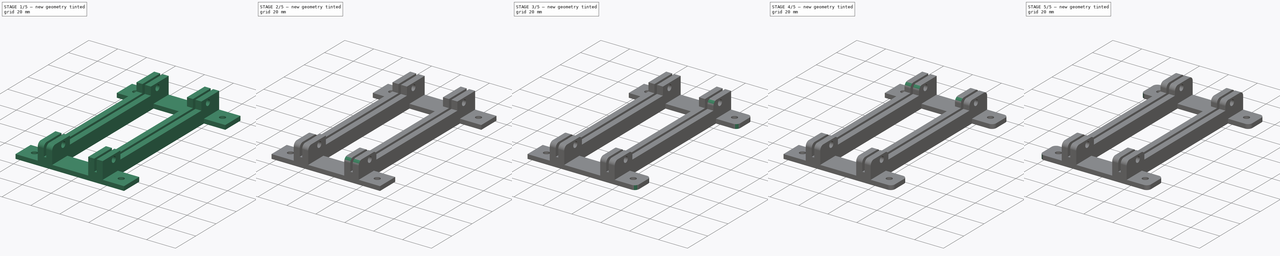
[diagram: build sequence overview — one tinted view per stage of 5, left to right]
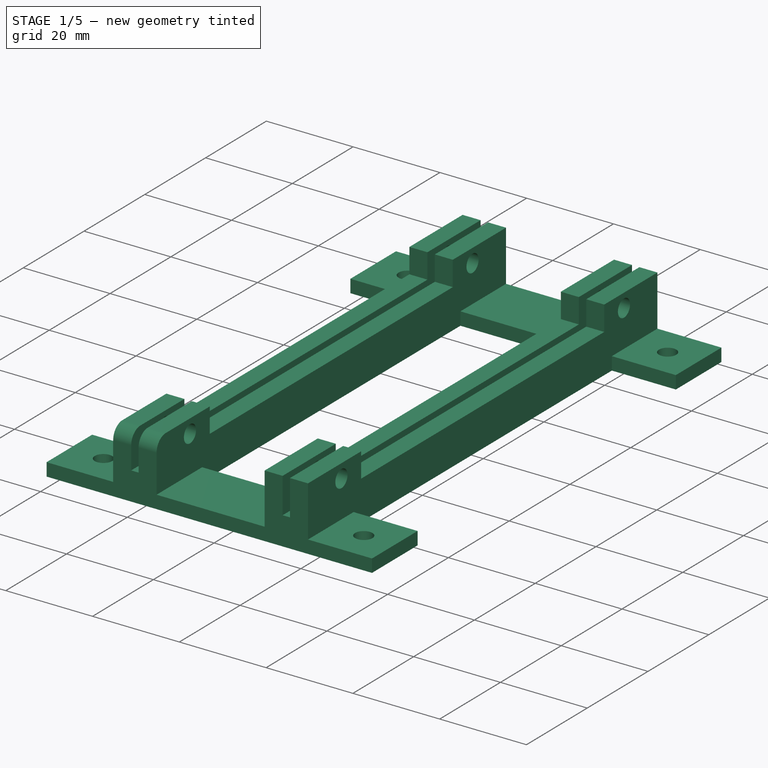
[diagram: stage 1 of 5 — iso view after this stage's code; geometry added in this stage tinted green]
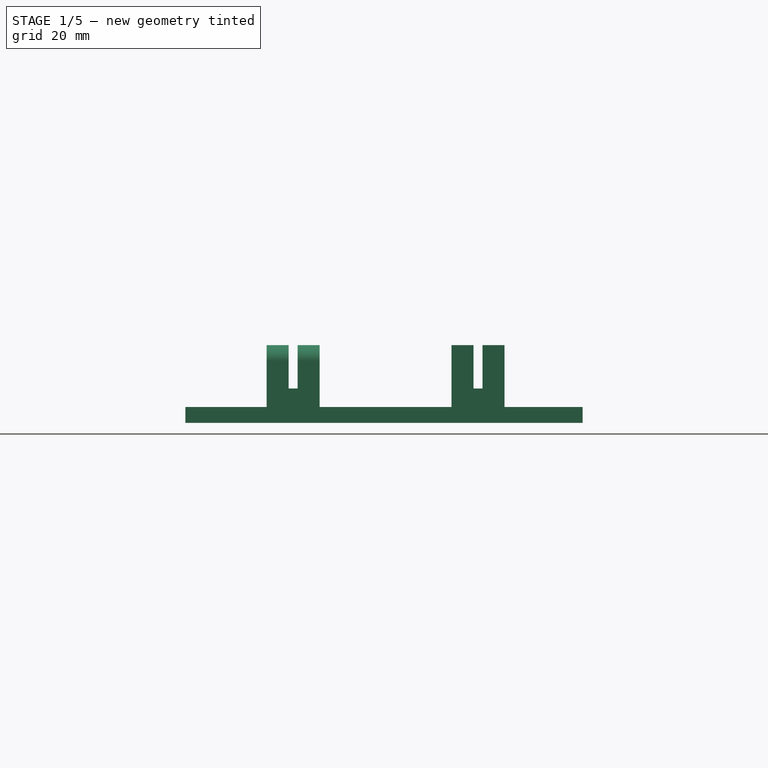
[diagram: stage 1 of 5 — front view after this stage's code; geometry added in this stage tinted green]
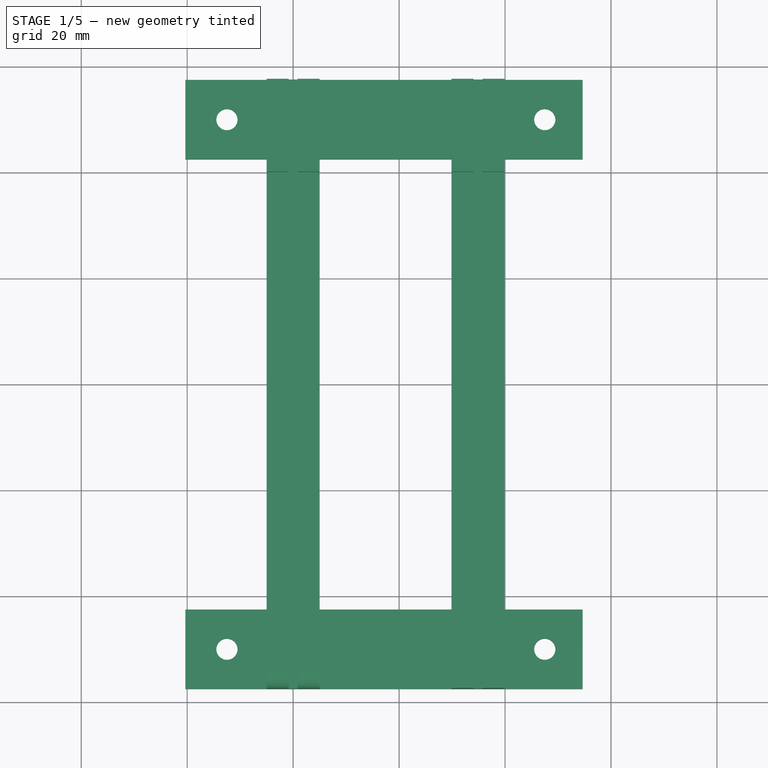
[diagram: stage 1 of 5 — top view after this stage's code; geometry added in this stage tinted green]
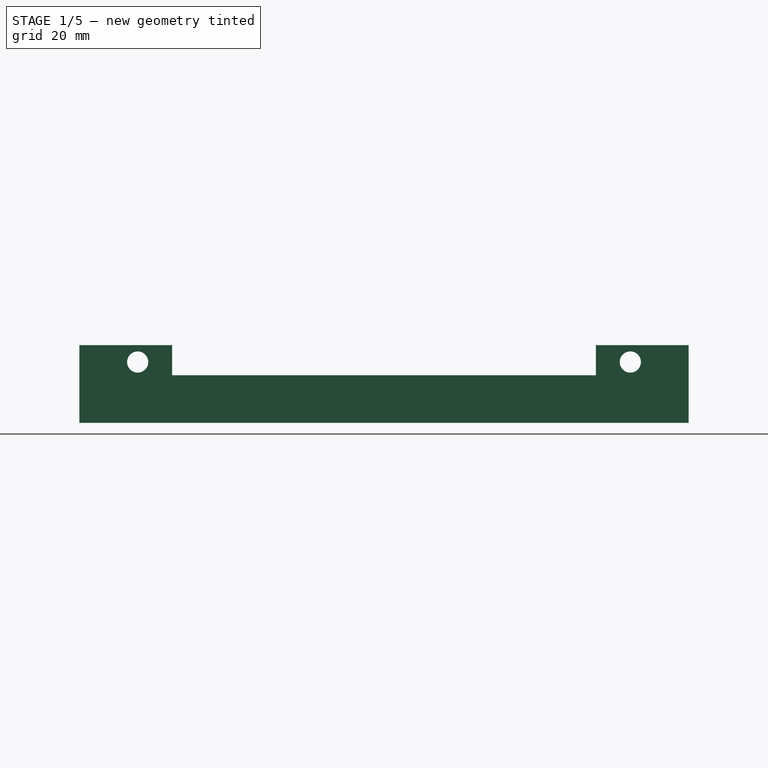
[diagram: stage 1 of 5 — right view after this stage's code; geometry added in this stage tinted green]
FCSTD DOCUMENT  (FreeCAD 1.0R39319 (Git))
Label: Mounting_Bracket_Dual_KF5N
License: All rights reserved
LicenseURL: http://en.wikipedia.org/wiki/All_rights_reserved
objects: PartDesign::Fillet×24, Sketcher::SketchObject×4, PartDesign::Pad×3, PartDesign::Pocket×1, PartDesign::Body×1
note: 93 computed .brp shape members not serialized (recipe doc carries the construction recipe); baked Part::Feature solids carry a one-line shape summary decoded from their .brp

FEATURE [Sketcher::SketchObject] Sketch
  ArcFitTolerance = 0
  AttachmentSupport = -> [XY_Plane]
  FullyConstrained = true
  MakeInternals = false
  MapMode = 5
  sketch-geometry (20):
    g0: LineSegment StartX=54.65 StartY=-57.5 StartZ=0 EndX=-20.35 EndY=-57.5 EndZ=0
    g1: LineSegment StartX=-20.35 StartY=42.5 StartZ=0 EndX=-5 EndY=42.5 EndZ=0
    g2: LineSegment StartX=-5 StartY=42.5 StartZ=0 EndX=-5 EndY=-42.5 EndZ=0
    g3: LineSegment StartX=5 StartY=42.5 StartZ=0 EndX=5 EndY=-42.5 EndZ=0
    g4: Circle CenterX=-12.5 CenterY=50 CenterZ=0 NormalX=0 NormalY=0 NormalZ=1 AngleXU=0 Radius=2
    g5: Circle CenterX=47.5 CenterY=50 CenterZ=0 NormalX=0 NormalY=0 NormalZ=1 AngleXU=0 Radius=2
    g6: Circle CenterX=-12.5 CenterY=-50 CenterZ=0 NormalX=0 NormalY=0 NormalZ=1 AngleXU=0 Radius=2
    g7: Circle CenterX=47.5 CenterY=-50 CenterZ=0 NormalX=0 NormalY=0 NormalZ=1 AngleXU=0 Radius=2
    g8: LineSegment StartX=39.9 StartY=42.5 StartZ=0 EndX=39.9 EndY=-42.5 EndZ=0
    g9: LineSegment StartX=29.9 StartY=42.5 StartZ=0 EndX=29.9 EndY=-42.5 EndZ=0
    g10: LineSegment StartX=-20.35 StartY=57.5 StartZ=0 EndX=54.65 EndY=57.5 EndZ=0
    g11: LineSegment StartX=-20.35 StartY=-42.5 StartZ=0 EndX=-5 EndY=-42.5 EndZ=0
    g12: LineSegment StartX=-20.35 StartY=-42.5 StartZ=0 EndX=-20.35 EndY=-57.5 EndZ=0
    g13: LineSegment StartX=54.65 StartY=-57.5 StartZ=0 EndX=54.65 EndY=-42.5 EndZ=0
    g14: LineSegment StartX=5 StartY=-42.5 StartZ=0 EndX=29.9 EndY=-42.5 EndZ=0
    g15: LineSegment StartX=5 StartY=42.5 StartZ=0 EndX=29.9 EndY=42.5 EndZ=0
    g16: LineSegment StartX=-20.35 StartY=42.5 StartZ=0 EndX=-20.35 EndY=57.5 EndZ=0
    g17: LineSegment StartX=39.9 StartY=-42.5 StartZ=0 EndX=54.65 EndY=-42.5 EndZ=0
    g18: LineSegment StartX=39.9 StartY=42.5 StartZ=0 EndX=54.65 EndY=42.5 EndZ=0
    g19: LineSegment StartX=54.65 StartY=57.5 StartZ=0 EndX=54.65 EndY=42.5 EndZ=0
  constraints (60):
    c: Horizontal(g1)
    c: Horizontal(g2,g3)
    c: DistanceY(g2,g-1) = 42.5
    c: DistanceX(g2,g-1) = 5
    c: Coincident(g11,g2)
    c: Horizontal(g11)
    c: Coincident(g12,g11)
    c: Coincident(g12,g0)
    c: Vertical(g12)
    c: DistanceX(g11,g-1) = 20.35
    c: DistanceY(g0,g-1) = 57.5
    c: DistanceX(g0,g0) = 75
    c: Horizontal(g0)
    c: DistanceY(g2,g1) = 85
    c: Coincident(g1,g2)
    c: Vertical(g2)
    c: Coincident(g13,g0)
    c: Vertical(g13)
    c: DistanceX(g-1,g3) = 5
    c: Horizontal(g1,g3)
    c: Coincident(g14,g3)
    c: Coincident(g14,g9)
    c: Horizontal(g14)
    c: Vertical(g3)
    c: Coincident(g15,g3)
    c: Coincident(g15,g9)
    c: Horizontal(g15)
    c: DistanceX(g3,g9) = 24.9
    c: Vertical(g9)
    c: DistanceX(g9,g8) = 10
    c: Horizontal(g9,g8)
    c: Horizontal(g9,g8)
    c: Vertical(g8)
    c: DistanceX(g10,g10) = 75
    c: DistanceY(g1,g10) = 15
    c: Coincident(g16,g1)
    c: Coincident(g16,g10)
    c: Vertical(g16)
    c: Vertical(g11,g1)
    c: Coincident(g17,g8)
    c: Coincident(g17,g13)
    c: Horizontal(g17)
    c: Coincident(g18,g8)
    c: Horizontal(g18)
    c: Horizontal(g10)
    c: Coincident(g19,g10)
    c: Coincident(g19,g18)
    c: Vertical(g19)
    c: Horizontal(g4,g5)
    c: Horizontal(g6,g7)
    c: Vertical(g4,g6)
    c: DistanceX(g4,g-1) = 12.5
    c: DistanceY(g-1,g4) = 50
    c: DistanceY(g6,g-1) = 50
    c: Radius(g5) = 2
    c: Radius(g4) = 2
    c: Radius(g7) = 2
    c: Radius(g6) = 2
    c: DistanceX(g-1,g5) = 47.5
    c: Vertical(g5,g7)
FEATURE [PartDesign::Pad] Pad
  Direction = (0,0,1)
  Length = 3
  Length2 = 100
  Profile = -> Sketch
  Suppressed = false
  Type = 0
FEATURE [Sketcher::SketchObject] Sketch001
  ArcFitTolerance = 0
  AttachmentOffset = pos=(0,0,3) rot=(0,0,1;0rad)
  AttachmentSupport = -> [XY_Plane]
  FullyConstrained = true
  MakeInternals = false
  MapMode = 5
  Placement = pos=(0,0,3) rot=(0,0,1;0rad)
  sketch-geometry (16):
    g0: LineSegment StartX=-5 StartY=57.5 StartZ=0 EndX=-0.85 EndY=57.5 EndZ=0
    g1: LineSegment StartX=-0.85 StartY=57.5 StartZ=0 EndX=-0.85 EndY=-57.5 EndZ=0
    g2: LineSegment StartX=-0.85 StartY=-57.5 StartZ=0 EndX=-5 EndY=-57.5 EndZ=0
    g3: LineSegment StartX=-5 StartY=-57.5 StartZ=0 EndX=-5 EndY=57.5 EndZ=0
    g4: LineSegment StartX=0.85 StartY=57.5 StartZ=0 EndX=5 EndY=57.5 EndZ=0
    g5: LineSegment StartX=5 StartY=57.5 StartZ=0 EndX=5 EndY=-57.5 EndZ=0
    g6: LineSegment StartX=5 StartY=-57.5 StartZ=0 EndX=0.85 EndY=-57.5 EndZ=0
    g7: LineSegment StartX=0.85 StartY=-57.5 StartZ=0 EndX=0.85 EndY=57.5 EndZ=0
    g8: LineSegment StartX=29.9 StartY=57.5 StartZ=0 EndX=34.05 EndY=57.5 EndZ=0
    g9: LineSegment StartX=34.05 StartY=57.5 StartZ=0 EndX=34.05 EndY=-57.5 EndZ=0
    g10: LineSegment StartX=34.05 StartY=-57.5 StartZ=0 EndX=29.9 EndY=-57.5 EndZ=0
    g11: LineSegment StartX=29.9 StartY=-57.5 StartZ=0 EndX=29.9 EndY=57.5 EndZ=0
    g12: LineSegment StartX=35.75 StartY=57.5 StartZ=0 EndX=39.9 EndY=57.5 EndZ=0
    g13: LineSegment StartX=39.9 StartY=57.5 StartZ=0 EndX=39.9 EndY=-57.5 EndZ=0
    g14: LineSegment StartX=39.9 StartY=-57.5 StartZ=0 EndX=35.75 EndY=-57.5 EndZ=0
    g15: LineSegment StartX=35.75 StartY=-57.5 StartZ=0 EndX=35.75 EndY=57.5 EndZ=0
  constraints (46):
    c: Coincident(g0,g1)
    c: Coincident(g1,g2)
    c: Coincident(g2,g3)
    c: Coincident(g3,g0)
    c: Horizontal(g2)
    c: Vertical(g3)
    c: Coincident(g4,g5)
    c: Coincident(g5,g6)
    c: Coincident(g6,g7)
    c: Coincident(g7,g4)
    c: Horizontal(g4)
    c: Horizontal(g6)
    c: Vertical(g5)
    c: DistanceX(g-1,g4) = 5
    c: DistanceX(g0,g-1) = 5
    c: DistanceX(g0,g0) = 4.15
    c: DistanceX(g4,g4) = 4.15
    c: DistanceY(g3,g3) = 115
    c: DistanceY(g7,g7) = 115
    c: Symmetric(g0,g1,g-1)
    c: Symmetric(g4,g6,g-1)
    c: Coincident(g8,g9)
    c: Coincident(g9,g10)
    c: Coincident(g10,g11)
    c: Coincident(g11,g8)
    c: Horizontal(g8)
    c: Horizontal(g10)
    c: Vertical(g9)
    c: Vertical(g11)
    c: Coincident(g12,g13)
    c: Coincident(g13,g14)
    c: Coincident(g14,g15)
    c: Coincident(g15,g12)
    c: Horizontal(g12)
    c: Horizontal(g14)
    c: Vertical(g13)
    c: Vertical(g15)
    c: Horizontal(g0,g0)
    c: Horizontal(g4,g8)
    c: Horizontal(g8,g12)
    c: DistanceX(g8,g12) = 1.7
    c: DistanceX(g12,g12) = 4.15
    c: DistanceX(g8,g8) = 4.15
    c: DistanceX(g4,g8) = 33.2
    c: DistanceY(g13,g12) = 115
    c: Horizontal(g14,g9)
FEATURE [PartDesign::Pad] Pad001
  BaseFeature = -> Pad
  Direction = (0,0,1)
  Length = 11.7
  Length2 = 100
  Profile = -> Sketch001
  Suppressed = false
  Type = 0
FEATURE [Sketcher::SketchObject] Sketch002
  ArcFitTolerance = 0
  AttachmentOffset = pos=(0,0,5) rot=(0,0,1;0rad)
  AttachmentSupport = -> [YZ_Plane]
  FullyConstrained = true
  MakeInternals = false
  MapMode = 5
  Placement = pos=(5,0,0) rot=(0.57735,0.57735,0.57735;2.0944rad)
  sketch-geometry (6):
    g0: LineSegment StartX=-40 StartY=15 StartZ=0 EndX=40 EndY=15 EndZ=0
    g1: LineSegment StartX=40 StartY=15 StartZ=0 EndX=40 EndY=9 EndZ=0
    g2: LineSegment StartX=40 StartY=9 StartZ=0 EndX=-40 EndY=9 EndZ=0
    g3: LineSegment StartX=-40 StartY=9 StartZ=0 EndX=-40 EndY=15 EndZ=0
    g4: Circle CenterX=-46.5 CenterY=11.5 CenterZ=0 NormalX=0 NormalY=0 NormalZ=1 AngleXU=0 Radius=2
    g5: Circle CenterX=46.5 CenterY=11.5 CenterZ=0 NormalX=0 NormalY=0 NormalZ=1 AngleXU=0 Radius=2
  constraints (18):
    c: Coincident(g0,g1)
    c: Coincident(g1,g2)
    c: Coincident(g2,g3)
    c: Coincident(g3,g0)
    c: Horizontal(g0)
    c: Horizontal(g2)
    c: Vertical(g1)
    c: Vertical(g3)
    c: DistanceY(g-1,g2) = 9
    c: DistanceX(g2,g2) = 80
    c: DistanceX(g2,g-1) = 40
    c: DistanceY(g3,g3) = 6
    c: DistanceY(g-1,g5) = 11.5
    c: Horizontal(g5,g4)
    c: Equal(g4,g5)
    c: Radius(g4) = 2
    c: DistanceX(g4,g-1) = 46.5
    c: DistanceX(g-1,g5) = 46.5
FEATURE [PartDesign::Pocket] Pocket
  BaseFeature = -> Pad001
  Direction = (-1,0,0)
  Length = 50
  Length2 = 100
  Profile = -> Sketch002
  ReferenceAxis = -> Sketch002 [N_Axis]
  Suppressed = false
  Type = 4
FEATURE [Sketcher::SketchObject] Sketch003
  ArcFitTolerance = 0
  AttachmentOffset = pos=(0,0,3) rot=(0,0,1;0rad)
  AttachmentSupport = -> [XY_Plane]
  FullyConstrained = true
  MakeInternals = false
  MapMode = 5
  Placement = pos=(0,0,3) rot=(0,0,1;0rad)
  sketch-geometry (8):
    g0: LineSegment StartX=-2 StartY=57.5 StartZ=0 EndX=2 EndY=57.5 EndZ=0
    g1: LineSegment StartX=2 StartY=57.5 StartZ=0 EndX=2 EndY=-57.5 EndZ=0
    g2: LineSegment StartX=2 StartY=-57.5 StartZ=0 EndX=-2 EndY=-57.5 EndZ=0
    g3: LineSegment StartX=-2 StartY=-57.5 StartZ=0 EndX=-2 EndY=57.5 EndZ=0
    g4: LineSegment StartX=33.05 StartY=57.5 StartZ=0 EndX=37.05 EndY=57.5 EndZ=0
    g5: LineSegment StartX=37.05 StartY=57.5 StartZ=0 EndX=37.05 EndY=-57.5 EndZ=0
    g6: LineSegment StartX=37.05 StartY=-57.5 StartZ=0 EndX=33.05 EndY=-57.5 EndZ=0
    g7: LineSegment StartX=33.05 StartY=-57.5 StartZ=0 EndX=33.05 EndY=57.5 EndZ=0
  constraints (24):
    c: Coincident(g0,g1)
    c: Coincident(g1,g2)
    c: Coincident(g2,g3)
    c: Coincident(g3,g0)
    c: Horizontal(g0)
    c: Horizontal(g2)
    c: Vertical(g1)
    c: Vertical(g3)
    c: DistanceX(g2,g2) = 4
    c: DistanceY(g3,g3) = 115
    c: DistanceY(g2,g-1) = 57.5
    c: DistanceX(g2,g-1) = 2
    c: Coincident(g4,g5)
    c: Coincident(g5,g6)
    c: Coincident(g6,g7)
    c: Coincident(g7,g4)
    c: Horizontal(g4)
    c: Horizontal(g6)
    c: Vertical(g5)
    c: Vertical(g7)
    c: DistanceX(g6,g5) = 4
    c: Horizontal(g0,g4)
    c: Horizontal(g1,g6)
    c: DistanceX(g-1,g4) = 33.05
FEATURE [PartDesign::Pad] Pad002
  BaseFeature = -> Pocket
  Direction = (0,0,1)
  Length = 3.5
  Length2 = 100
  Profile = -> Sketch003
  ReferenceAxis = -> Sketch003 [N_Axis]
  Suppressed = false
  Type = 0
FEATURE [PartDesign::Fillet] Fillet
  Base = -> Pad002 [Edge70]
  BaseFeature = -> Pad002
  Radius = 3
  SupportTransform = false
  Suppressed = false
  UseAllEdges = false
FEATURE [PartDesign::Fillet] Fillet001
  Base = -> Fillet [Edge109]
  BaseFeature = -> Fillet
  Radius = 3
  SupportTransform = false
  Suppressed = false
  UseAllEdges = false
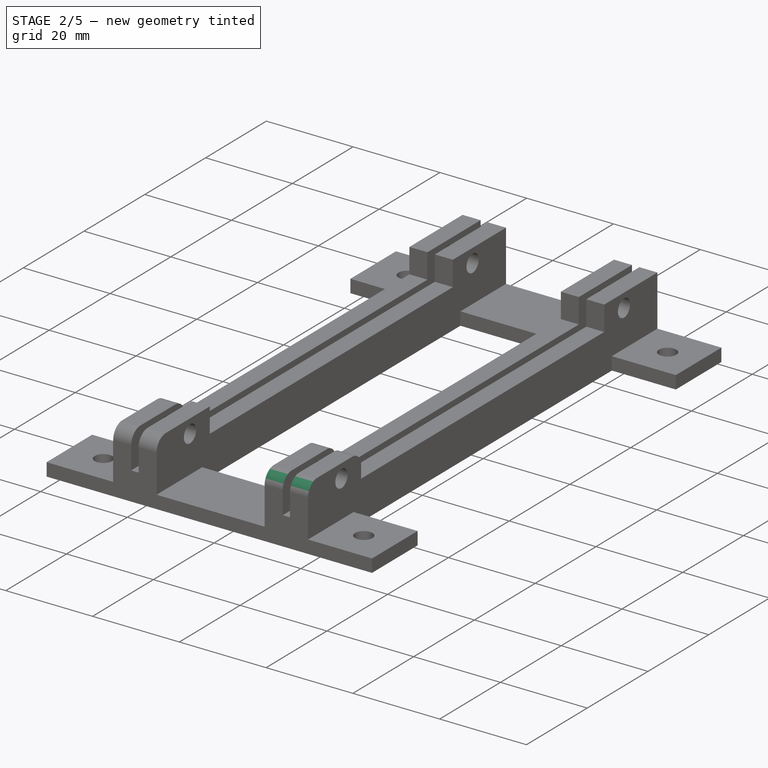
[diagram: stage 2 of 5 — iso view after this stage's code; geometry added in this stage tinted green]
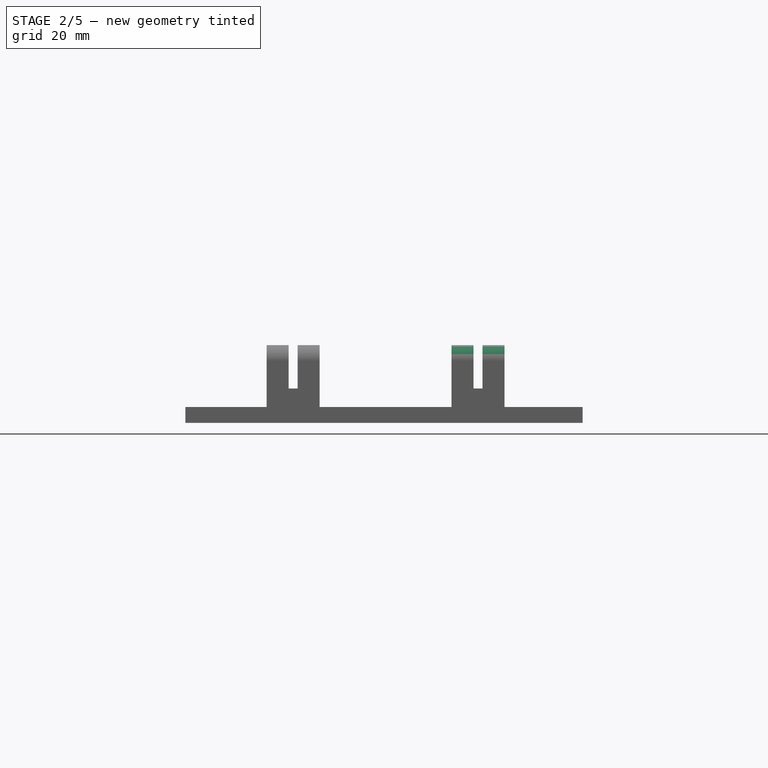
[diagram: stage 2 of 5 — front view after this stage's code; geometry added in this stage tinted green]
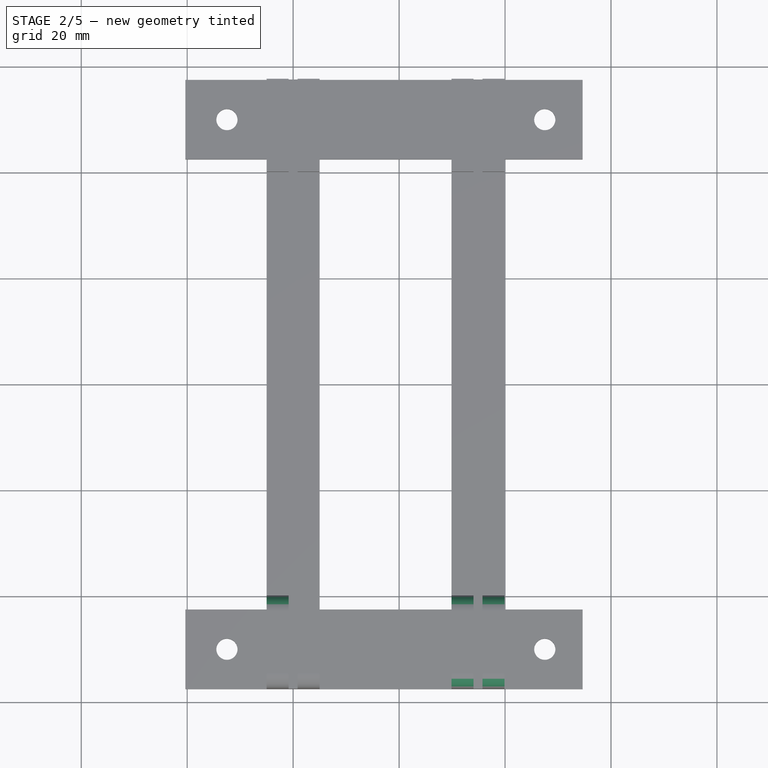
[diagram: stage 2 of 5 — top view after this stage's code; geometry added in this stage tinted green]
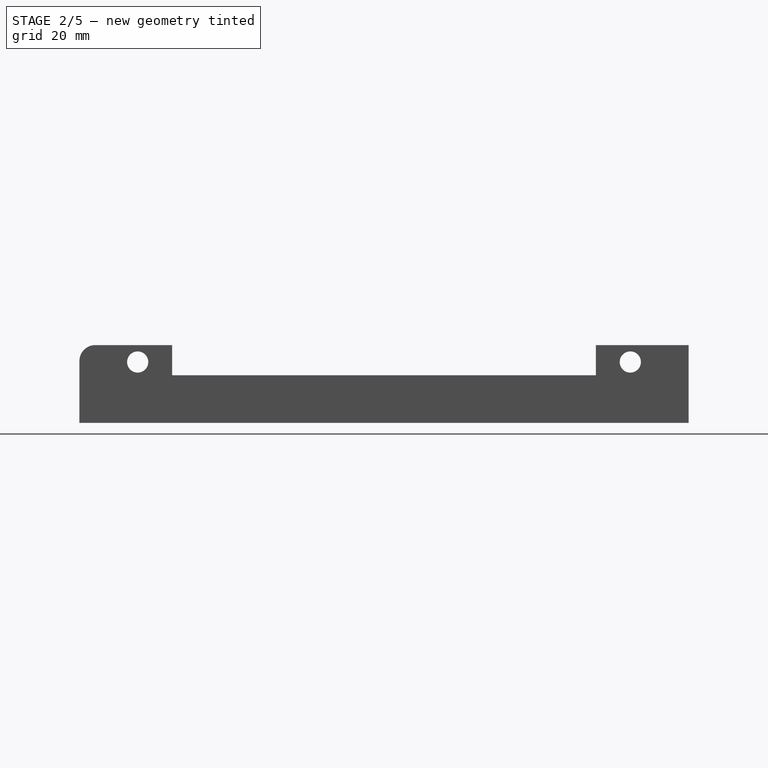
[diagram: stage 2 of 5 — right view after this stage's code; geometry added in this stage tinted green]
FEATURE [PartDesign::Fillet] Fillet002
  Base = -> Fillet001 [Edge104]
  BaseFeature = -> Fillet001
  Radius = 3
  SupportTransform = false
  Suppressed = false
  UseAllEdges = false
FEATURE [PartDesign::Fillet] Fillet003
  Base = -> Fillet002 [Edge92]
  BaseFeature = -> Fillet002
  Radius = 3
  SupportTransform = false
  Suppressed = false
  UseAllEdges = false
FEATURE [PartDesign::Fillet] Fillet004
  Base = -> Fillet003 [Edge46]
  BaseFeature = -> Fillet003
  Radius = 3
  SupportTransform = false
  Suppressed = false
  UseAllEdges = false
FEATURE [PartDesign::Fillet] Fillet005
  Base = -> Fillet004 [Edge146]
  BaseFeature = -> Fillet004
  Radius = 3
  SupportTransform = false
  Suppressed = false
  UseAllEdges = false
FEATURE [PartDesign::Fillet] Fillet006
  Base = -> Fillet005 [Edge242]
  BaseFeature = -> Fillet005
  Radius = 3
  SupportTransform = false
  Suppressed = false
  UseAllEdges = false
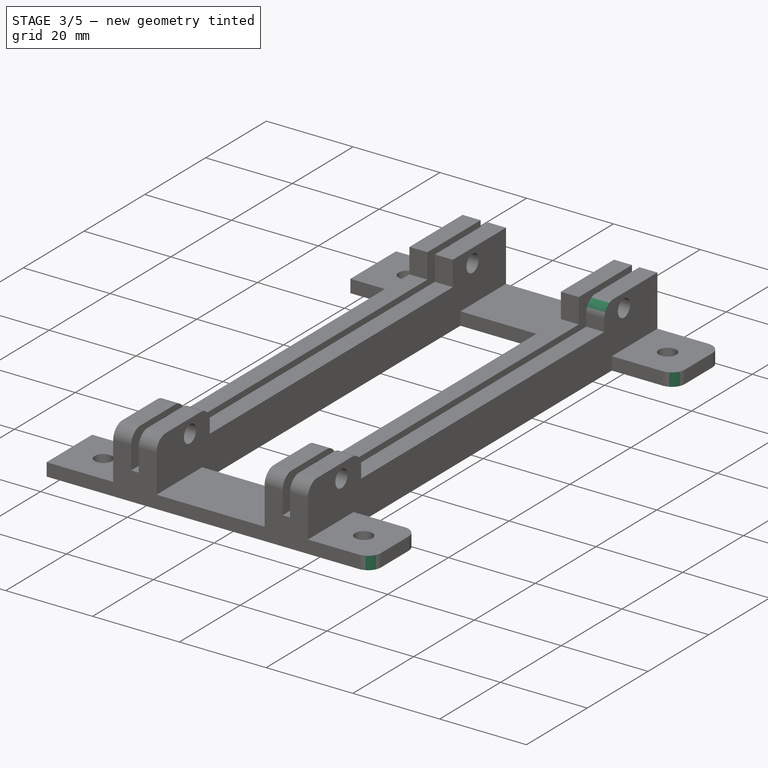
[diagram: stage 3 of 5 — iso view after this stage's code; geometry added in this stage tinted green]
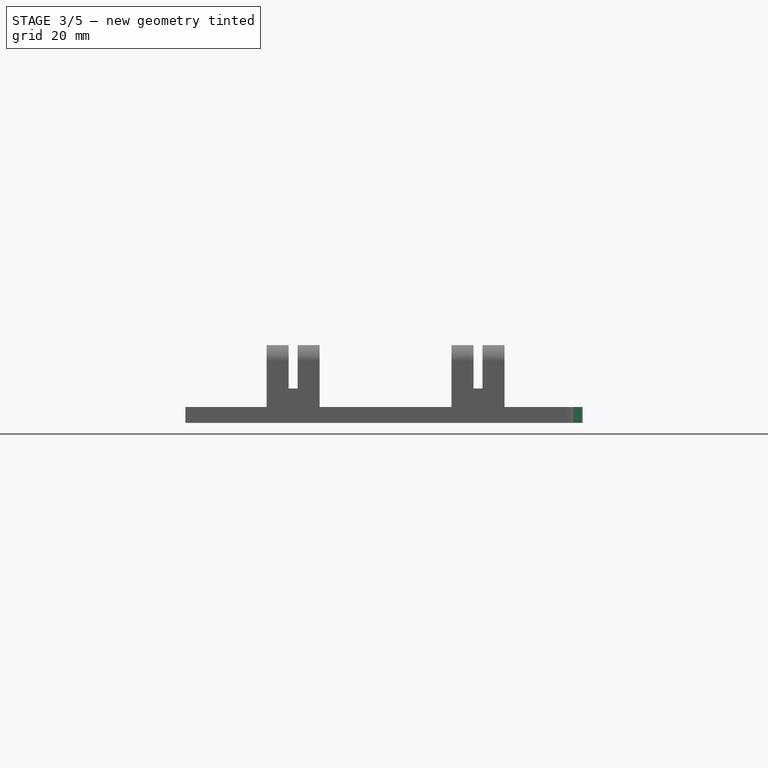
[diagram: stage 3 of 5 — front view after this stage's code; geometry added in this stage tinted green]
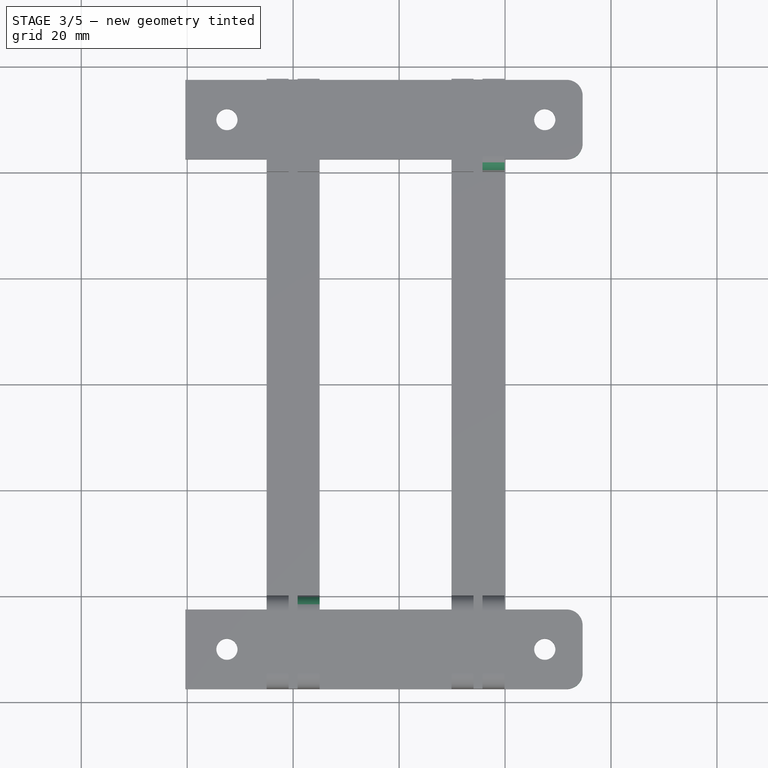
[diagram: stage 3 of 5 — top view after this stage's code; geometry added in this stage tinted green]
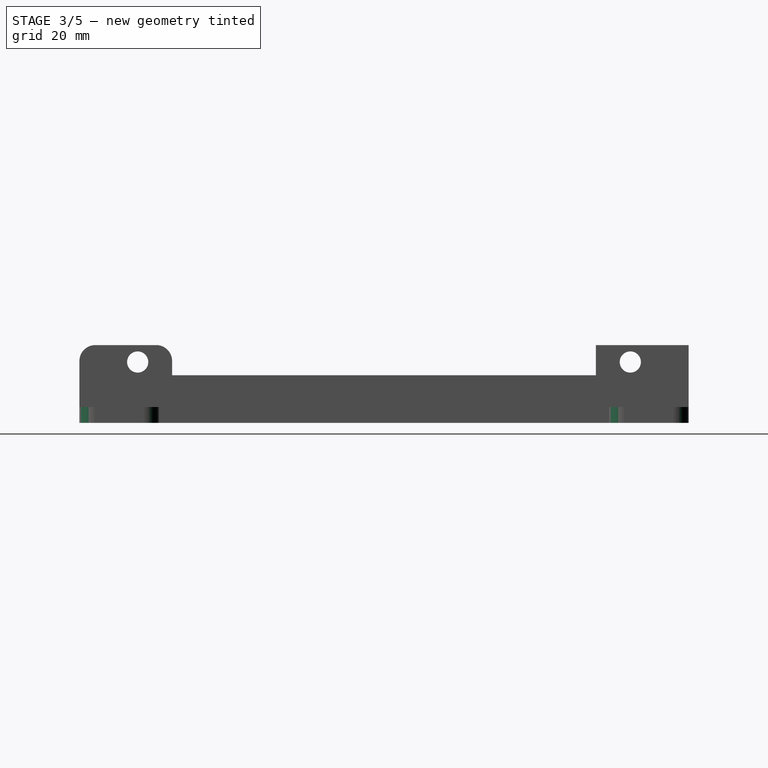
[diagram: stage 3 of 5 — right view after this stage's code; geometry added in this stage tinted green]
FEATURE [PartDesign::Fillet] Fillet007
  Base = -> Fillet006 [Edge233]
  BaseFeature = -> Fillet006
  Radius = 3
  SupportTransform = false
  Suppressed = false
  UseAllEdges = false
FEATURE [PartDesign::Fillet] Fillet008
  Base = -> Fillet007 [Edge48]
  BaseFeature = -> Fillet007
  Radius = 3
  SupportTransform = false
  Suppressed = false
  UseAllEdges = false
FEATURE [PartDesign::Fillet] Fillet009
  Base = -> Fillet008 [Edge77]
  BaseFeature = -> Fillet008
  Radius = 3
  SupportTransform = false
  Suppressed = false
  UseAllEdges = false
FEATURE [PartDesign::Fillet] Fillet010
  Base = -> Fillet009 [Edge50]
  BaseFeature = -> Fillet009
  Radius = 3
  SupportTransform = false
  Suppressed = false
  UseAllEdges = false
FEATURE [PartDesign::Fillet] Fillet011
  Base = -> Fillet010 [Edge31]
  BaseFeature = -> Fillet010
  Radius = 3
  SupportTransform = false
  Suppressed = false
  UseAllEdges = false
FEATURE [PartDesign::Fillet] Fillet012
  Base = -> Fillet011 [Edge193]
  BaseFeature = -> Fillet011
  Radius = 3
  SupportTransform = false
  Suppressed = false
  UseAllEdges = false
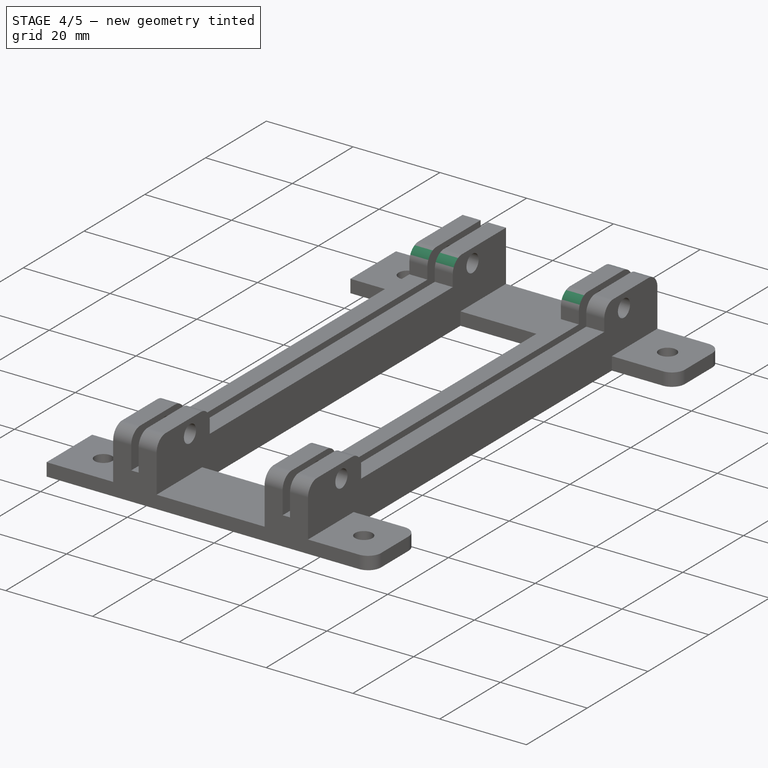
[diagram: stage 4 of 5 — iso view after this stage's code; geometry added in this stage tinted green]
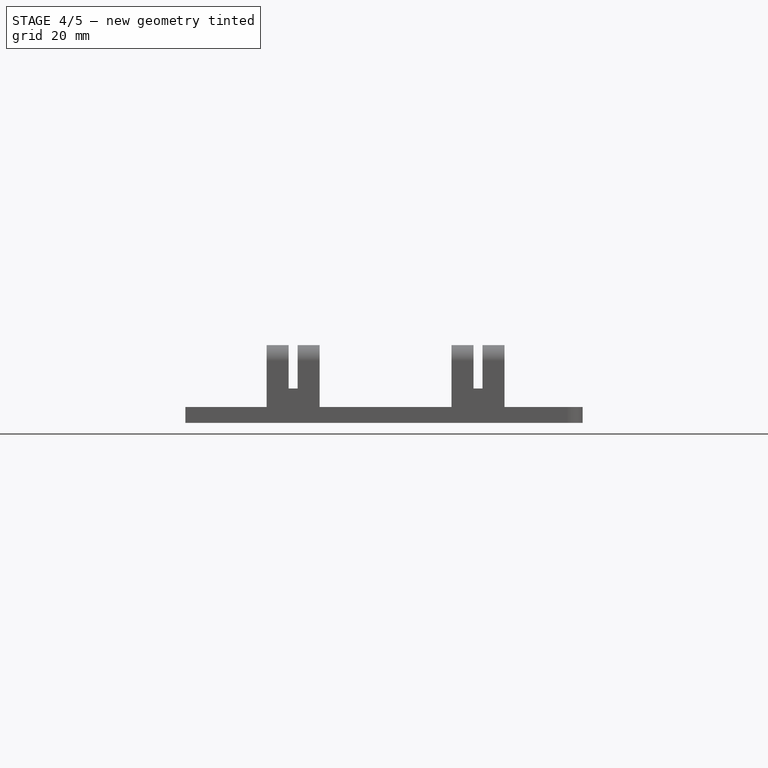
[diagram: stage 4 of 5 — front view after this stage's code; geometry added in this stage tinted green]
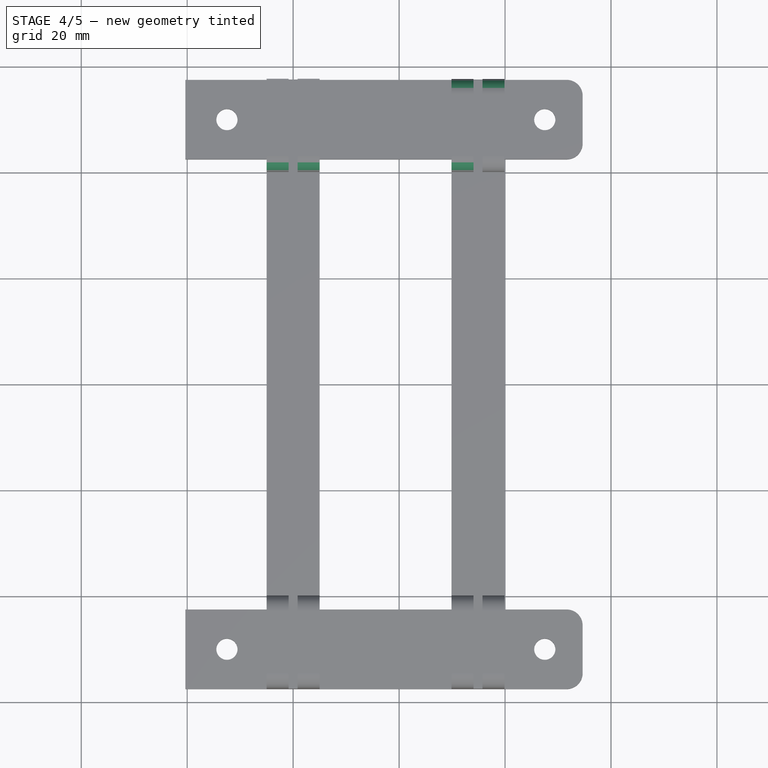
[diagram: stage 4 of 5 — top view after this stage's code; geometry added in this stage tinted green]
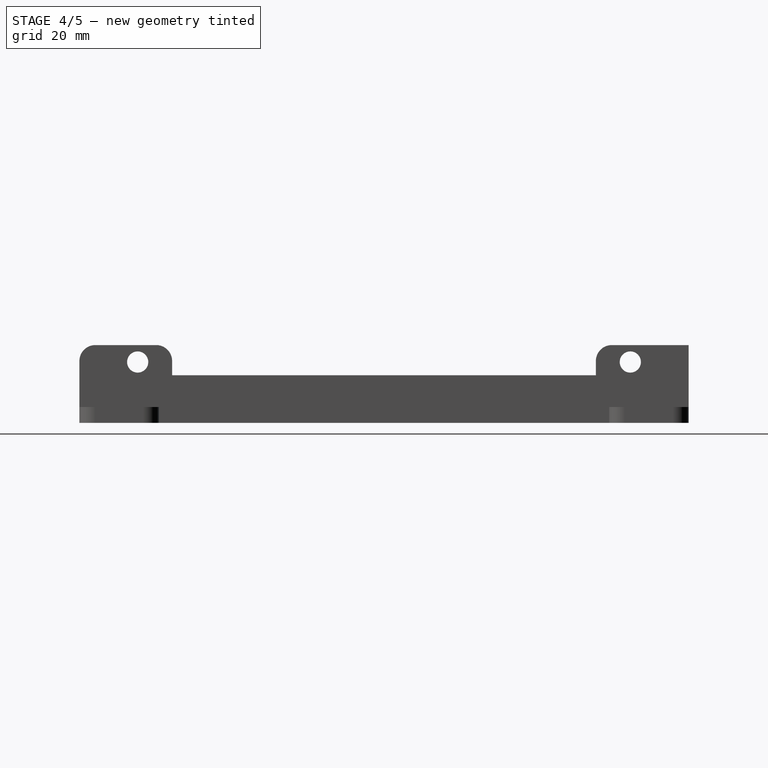
[diagram: stage 4 of 5 — right view after this stage's code; geometry added in this stage tinted green]
FEATURE [PartDesign::Fillet] Fillet013
  Base = -> Fillet012 [Edge218]
  BaseFeature = -> Fillet012
  Radius = 3
  SupportTransform = false
  Suppressed = false
  UseAllEdges = false
FEATURE [PartDesign::Fillet] Fillet014
  Base = -> Fillet013 [Edge138]
  BaseFeature = -> Fillet013
  Radius = 3
  SupportTransform = false
  Suppressed = false
  UseAllEdges = false
FEATURE [PartDesign::Fillet] Fillet015
  Base = -> Fillet014 [Edge150]
  BaseFeature = -> Fillet014
  Radius = 3
  SupportTransform = false
  Suppressed = false
  UseAllEdges = false
FEATURE [PartDesign::Fillet] Fillet016
  Base = -> Fillet015 [Edge253]
  BaseFeature = -> Fillet015
  Radius = 3
  SupportTransform = false
  Suppressed = false
  UseAllEdges = false
FEATURE [PartDesign::Fillet] Fillet017
  Base = -> Fillet016 [Edge262]
  BaseFeature = -> Fillet016
  Radius = 3
  SupportTransform = false
  Suppressed = false
  UseAllEdges = false
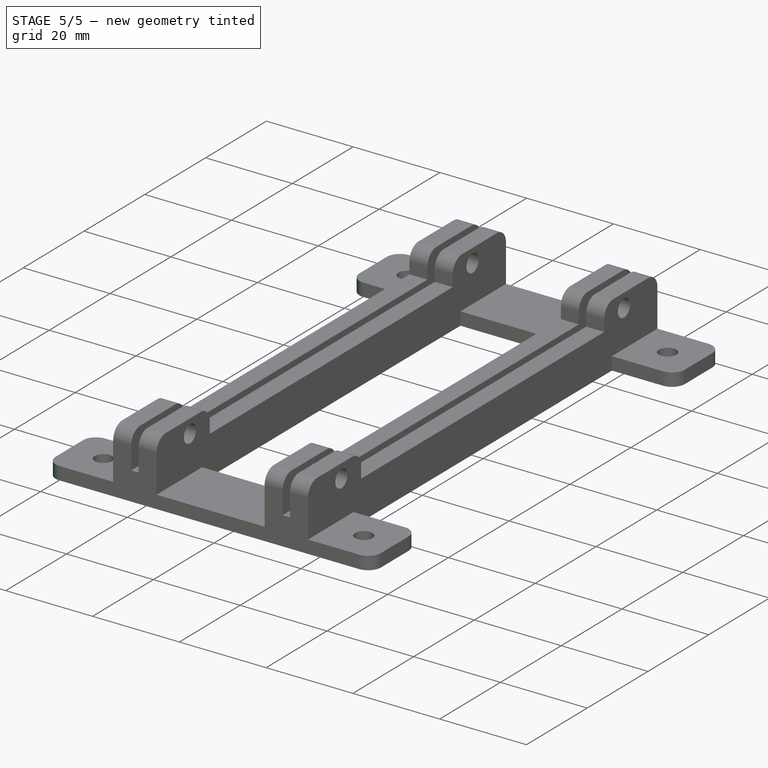
[diagram: stage 5 of 5 — iso view after this stage's code; geometry added in this stage tinted green]
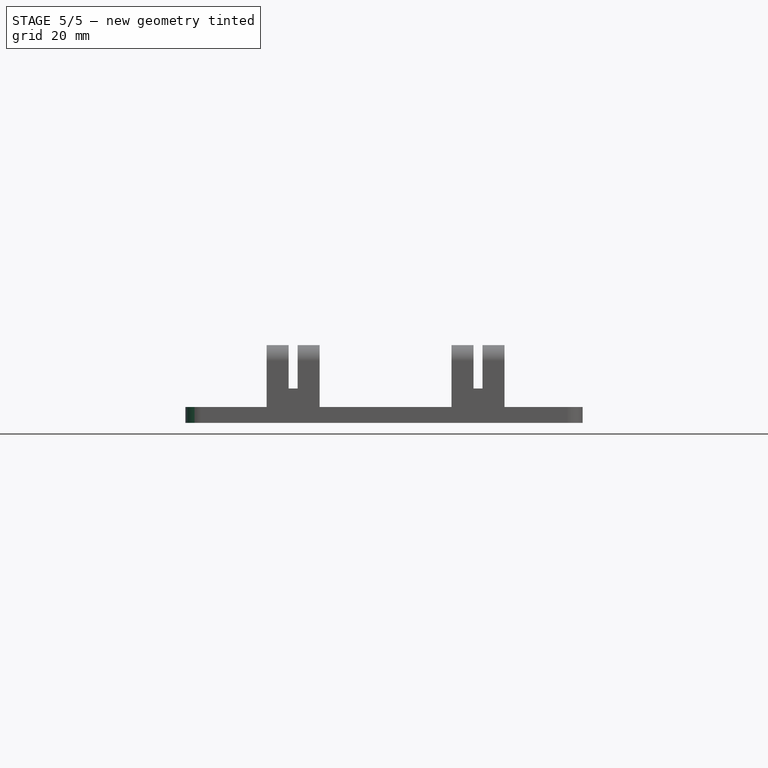
[diagram: stage 5 of 5 — front view after this stage's code; geometry added in this stage tinted green]
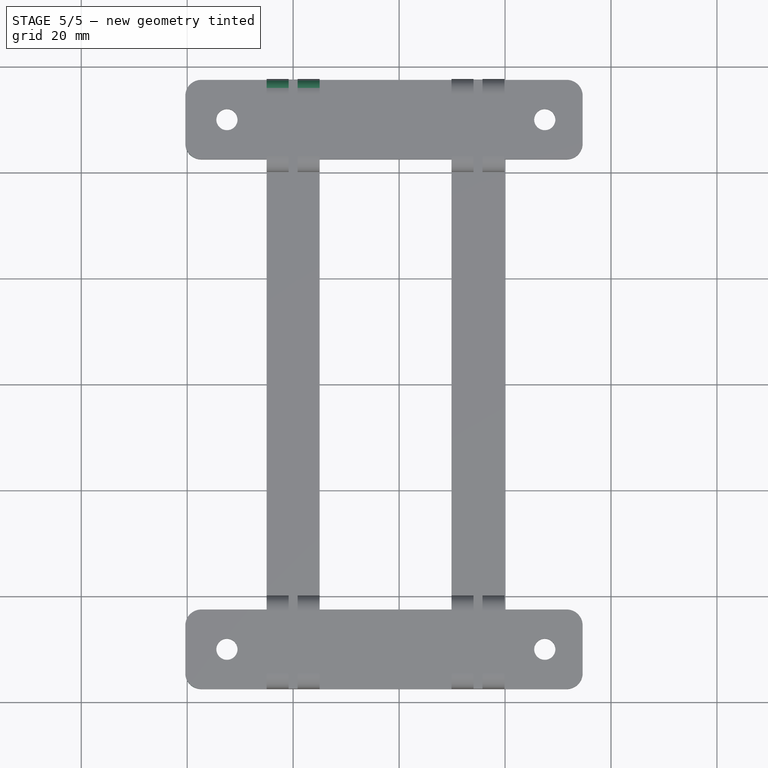
[diagram: stage 5 of 5 — top view after this stage's code; geometry added in this stage tinted green]
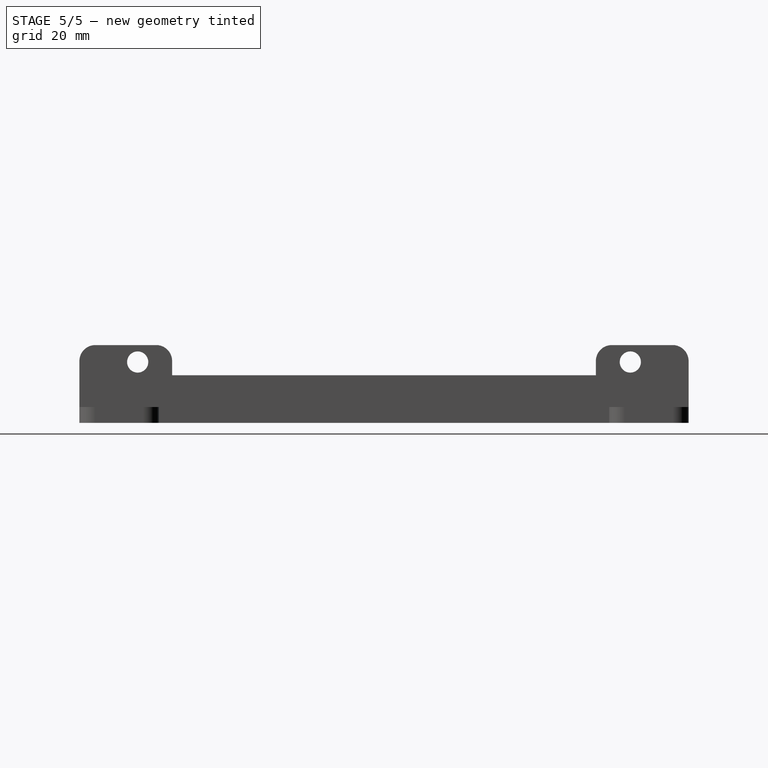
[diagram: stage 5 of 5 — right view after this stage's code; geometry added in this stage tinted green]
FEATURE [PartDesign::Fillet] Fillet018
  Base = -> Fillet017 [Edge21]
  BaseFeature = -> Fillet017
  Radius = 3
  SupportTransform = false
  Suppressed = false
  UseAllEdges = false
FEATURE [PartDesign::Fillet] Fillet019
  Base = -> Fillet018 [Edge152]
  BaseFeature = -> Fillet018
  Radius = 3
  SupportTransform = false
  Suppressed = false
  UseAllEdges = false
FEATURE [PartDesign::Fillet] Fillet020
  Base = -> Fillet019 [Edge88]
  BaseFeature = -> Fillet019
  Radius = 3
  SupportTransform = false
  Suppressed = false
  UseAllEdges = false
FEATURE [PartDesign::Fillet] Fillet021
  Base = -> Fillet020 [Edge83]
  BaseFeature = -> Fillet020
  Radius = 3
  SupportTransform = false
  Suppressed = false
  UseAllEdges = false
FEATURE [PartDesign::Fillet] Fillet022
  Base = -> Fillet021 [Edge54]
  BaseFeature = -> Fillet021
  Radius = 3
  SupportTransform = false
  Suppressed = false
  UseAllEdges = false
FEATURE [PartDesign::Fillet] Fillet023
  Base = -> Fillet022 [Edge35]
  BaseFeature = -> Fillet022
  Radius = 3
  SupportTransform = false
  Suppressed = false
  UseAllEdges = false
FEATURE [PartDesign::Body] Body
  AllowCompound = false
  Group = -> [Sketch,Pad,Sketch001,Pad001,Sketch002,Pocket,Sketch003,Pad002,Fillet,Fillet001,Fillet002,Fillet003,Fillet004,Fillet005,Fillet006,Fillet007,Fillet008,Fillet009,Fillet010,Fillet011,Fillet012,Fillet013,Fillet014,Fillet015,Fillet016,Fillet017,Fillet018,Fillet019,Fillet020,Fillet021,Fillet022,Fillet023]
  Origin = -> Origin
  Tip = -> Fillet023
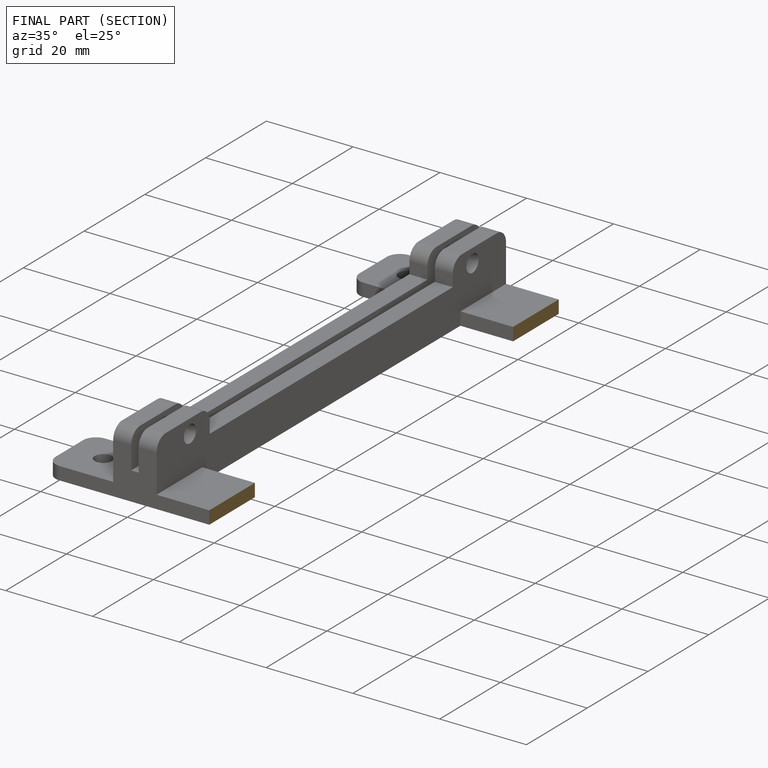
[diagram: finished part — half-section view (interior)]
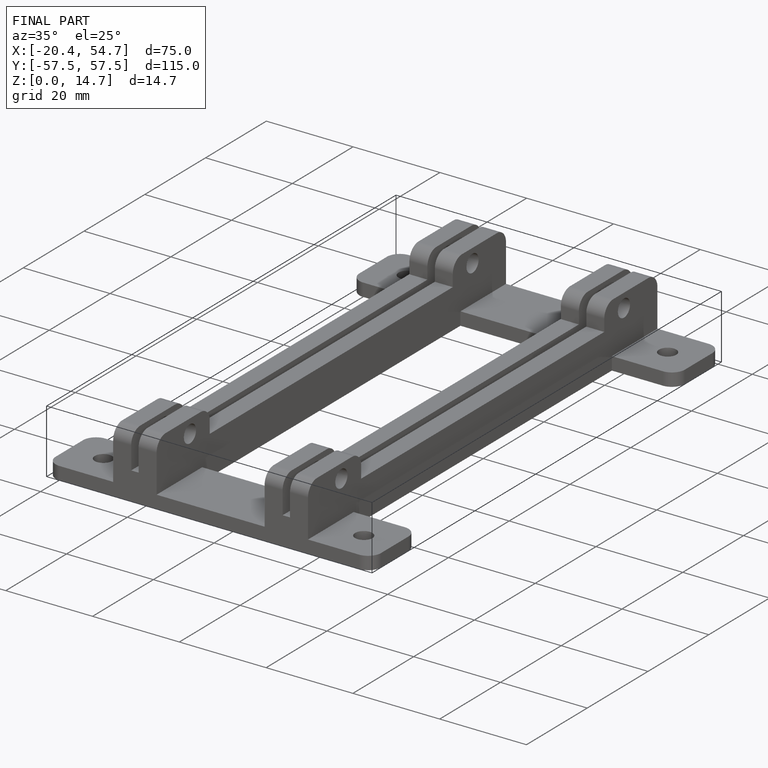
[diagram: finished part — iso view with bounding-box wireframe]
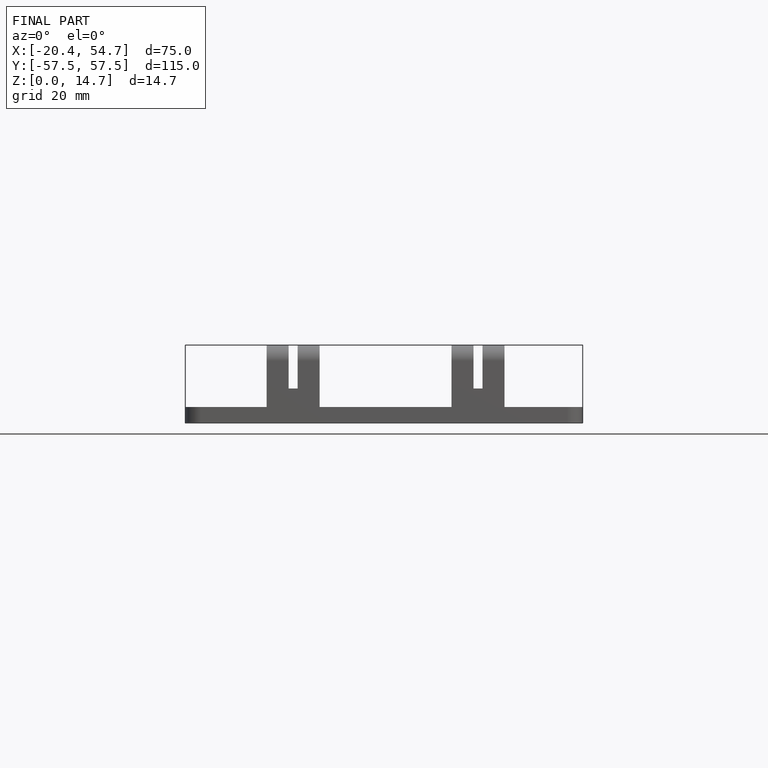
[diagram: finished part — front view with bounding-box wireframe]
